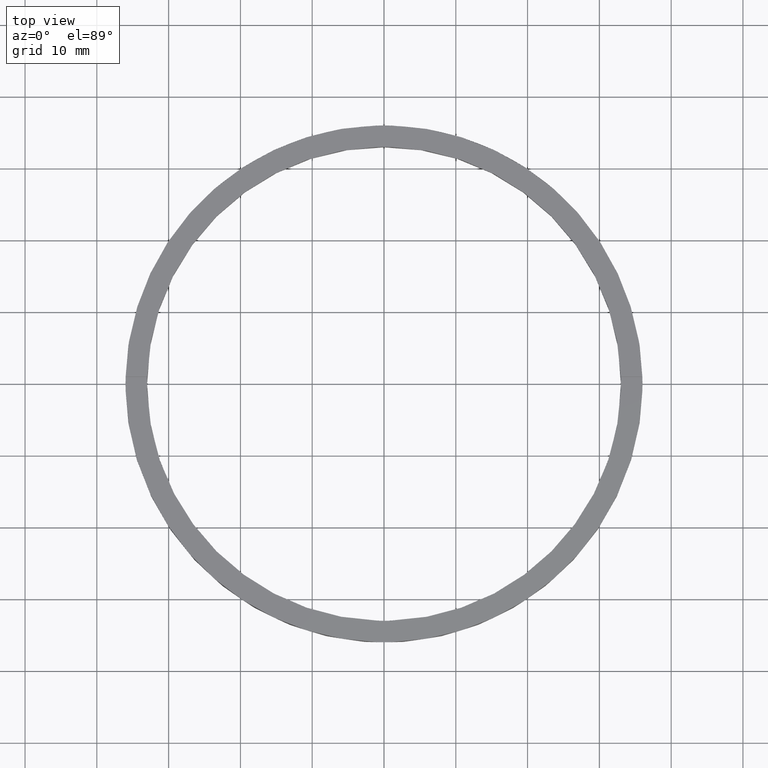
[diagram: clean part render]
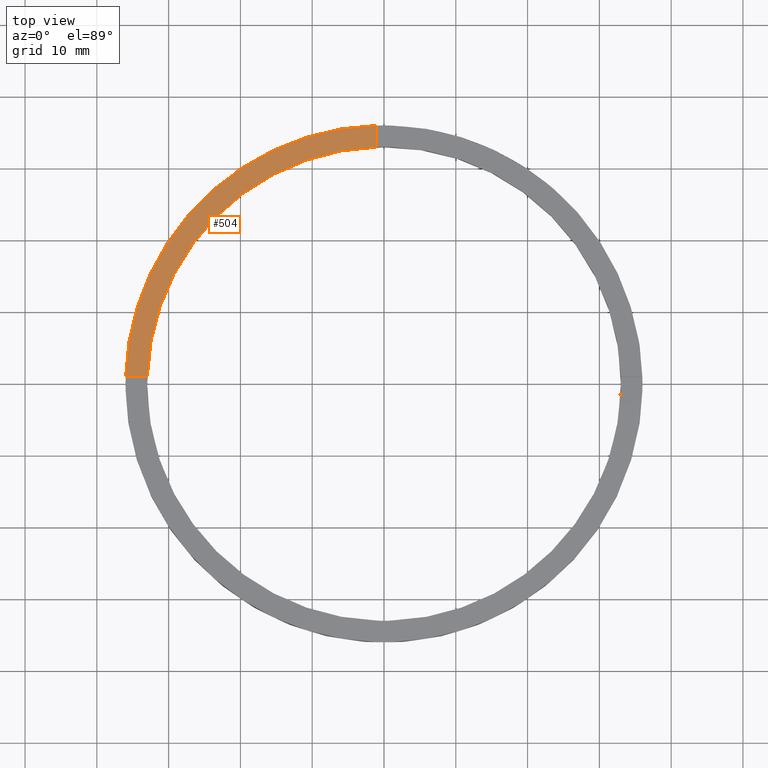
[diagram: same view with one face highlighted and labeled with its STEP entity id]
A machine part, top view. The second image highlights one B-rep face of the part: STEP entity #504.
In plain terms, the highlighted planar face has unit normal (0, 0, 1).
Its self-contained STEP definition (entity closure, byte-faithful):
#12 = EDGE_CURVE ( 'NONE', #607, #392, #662, .T. ) ;
#14 = AXIS2_PLACEMENT_3D ( 'NONE', #195, #520, #364 ) ;
#15 = EDGE_CURVE ( 'NONE', #132, #607, #666, .T. ) ;
#30 = CARTESIAN_POINT ( 'NONE',  ( 0.000000000000000000, 0.000000000000000000, 3.500000000000000000 ) ) ;
#31 = CARTESIAN_POINT ( 'NONE',  ( -1.000000000000025091, 32.98484500494128469, 3.500000000000000000 ) ) ;
#75 = ORIENTED_EDGE ( 'NONE', *, *, #15, .F. ) ;
#132 = VERTEX_POINT ( 'NONE', #31 ) ;
#160 = VECTOR ( 'NONE', #402, 1000.000000000000000 ) ;
#195 = CARTESIAN_POINT ( 'NONE',  ( 0.000000000000000000, 0.000000000000000000, 3.500000000000000000 ) ) ;
#199 = CARTESIAN_POINT ( 'NONE',  ( -35.98610843089316091, 0.9999999999999729106, 3.500000000000000000 ) ) ;
#233 = CARTESIAN_POINT ( 'NONE',  ( -26.00000000000018119, 0.9999999999999749090, 3.500000000000000000 ) ) ;
#284 = LINE ( 'NONE', #522, #536 ) ;
#286 = CARTESIAN_POINT ( 'NONE',  ( -1.000000000000025091, 35.98610843089315381, 3.500000000000000000 ) ) ;
#316 = DIRECTION ( 'NONE',  ( 0.000000000000000000, 0.000000000000000000, 1.000000000000000000 ) ) ;
#348 = ORIENTED_EDGE ( 'NONE', *, *, #723, .T. ) ;
#364 = DIRECTION ( 'NONE',  ( 1.000000000000000000, 0.000000000000000000, 0.000000000000000000 ) ) ;
#392 = VERTEX_POINT ( 'NONE', #199 ) ;
#393 = CARTESIAN_POINT ( 'NONE',  ( 0.000000000000000000, 0.000000000000000000, 3.500000000000000000 ) ) ;
#402 = DIRECTION ( 'NONE',  ( -1.000000000000000000, -1.951563910473907735E-16, 0.000000000000000000 ) ) ;
#418 = ORIENTED_EDGE ( 'NONE', *, *, #632, .F. ) ;
#421 = DIRECTION ( 'NONE',  ( 1.000000000000000000, 0.000000000000000000, -0.000000000000000000 ) ) ;
#458 = FACE_OUTER_BOUND ( 'NONE', #622, .T. ) ;
#468 = DIRECTION ( 'NONE',  ( 1.000000000000000000, 0.000000000000000000, 0.000000000000000000 ) ) ;
#482 = AXIS2_PLACEMENT_3D ( 'NONE', #393, #316, #468 ) ;
#483 = PLANE ( 'NONE',  #771 ) ;
#504 = ADVANCED_FACE ( 'NONE', ( #458 ), #483, .T. ) ;
#520 = DIRECTION ( 'NONE',  ( 0.000000000000000000, 0.000000000000000000, 1.000000000000000000 ) ) ;
#522 = CARTESIAN_POINT ( 'NONE',  ( -1.000000000000025091, 25.99999999999999645, 3.500000000000000000 ) ) ;
#536 = VECTOR ( 'NONE', #583, 1000.000000000000000 ) ;
#546 = CIRCLE ( 'NONE', #14, 36.00000000000000000 ) ;
#583 = DIRECTION ( 'NONE',  ( -0.000000000000000000, -1.000000000000000000, -0.000000000000000000 ) ) ;
#607 = VERTEX_POINT ( 'NONE', #642 ) ;
#622 = EDGE_LOOP ( 'NONE', ( #418, #348, #638, #75 ) ) ;
#632 = EDGE_CURVE ( 'NONE', #648, #132, #284, .T. ) ;
#638 = ORIENTED_EDGE ( 'NONE', *, *, #12, .F. ) ;
#642 = CARTESIAN_POINT ( 'NONE',  ( -32.98484500494129179, 0.9999999999999733546, 3.500000000000000000 ) ) ;
#648 = VERTEX_POINT ( 'NONE', #286 ) ;
#662 = LINE ( 'NONE', #233, #160 ) ;
#666 = CIRCLE ( 'NONE', #482, 33.00000000000000000 ) ;
#723 = EDGE_CURVE ( 'NONE', #648, #392, #546, .T. ) ;
#771 = AXIS2_PLACEMENT_3D ( 'NONE', #30, #773, #421 ) ;
#773 = DIRECTION ( 'NONE',  ( 0.000000000000000000, 0.000000000000000000, 1.000000000000000000 ) ) ;